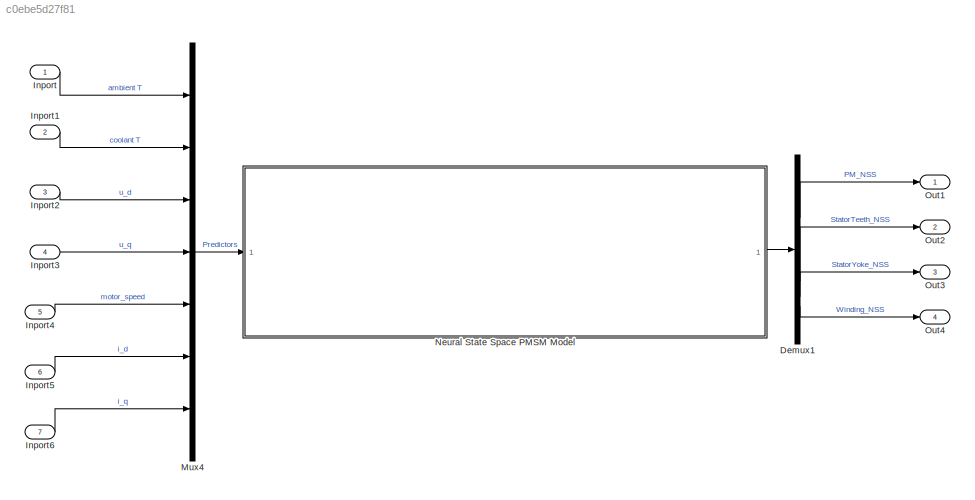
MODEL slx_c0ebe5d27f81
KIND model
CONFIG AbsTol = auto
CONFIG EnableMultiTasking = off
CONFIG FixedStep = 0.5
CONFIG MaxStep = auto
CONFIG MinStep = auto
CONFIG PreLoadFcn = % Load the trained NSS Model\nload Models/NSSTrainingOutput.mat\n\n% Extract the corresponding input normalizations\nmeanX_nss = NSStrainingOutput.Normalization.Mu{1,1:7};\nstdX_nss = NSStrainingOutput.Normalization.Sigma{1,1:7};\n\n% Extract output normalization\nmeanY_nss = NSStrainingOutput.Normalization.Mu{1,8:11};\nstdY_nss = NSStrainingOutput.Normalization.Sigma{1,8:11};
CONFIG RelTol = 1e-3
CONFIG SampleTimeConstraint = Unconstrained
CONFIG SolverName = FixedStepAuto
CONFIG StartTime = 0
CONFIG StopTime = inf
WORKSPACE source: mxarray member
WORKSPACE time = -1
BLOCK [Demux] Demux1
BLOCK [Inport] Inport
BLOCK [Inport] Inport1
  Port = 2
BLOCK [Inport] Inport2
  Port = 3
BLOCK [Inport] Inport3
  Port = 4
BLOCK [Inport] Inport4
  Port = 5
BLOCK [Inport] Inport5
  Port = 6
BLOCK [Inport] Inport6
  Port = 7
BLOCK [Mux] Mux4
  DisplayOption = bar
  Inputs = 7
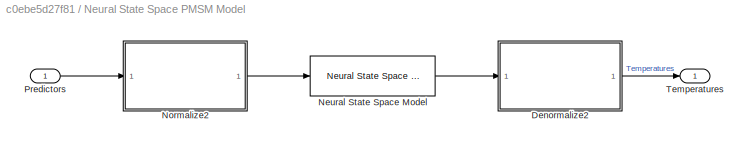
BLOCK [SubSystem] Neural State Space PMSM Model
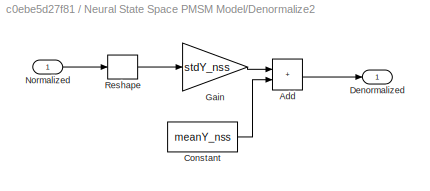
BLOCK [SubSystem] Neural State Space PMSM Model/Denormalize2
BLOCK [Sum] Neural State Space PMSM Model/Denormalize2/Add
  IconShape = rectangular
BLOCK [Constant] Neural State Space PMSM Model/Denormalize2/Constant
  Value = meanY_nss
BLOCK [Outport] Neural State Space PMSM Model/Denormalize2/Denormalized
BLOCK [Gain] Neural State Space PMSM Model/Denormalize2/Gain
  Gain = stdY_nss
  OutDataTypeStr = single
BLOCK [Inport] Neural State Space PMSM Model/Denormalize2/Normalized
BLOCK [Reshape] Neural State Space PMSM Model/Denormalize2/Reshape
BLOCK [Reference] Neural State Space PMSM Model/Neural State Space Model  REF=slident/Models/Neural State Space Model  (lib defined in mdl_f7d4911ca73a)
  SourceBlock = slident/Models/Neural State Space Model
  SourceType = Neural State Space Model
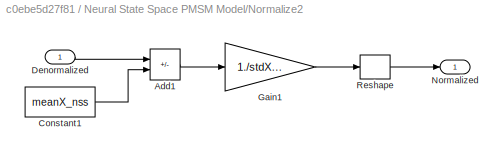
BLOCK [SubSystem] Neural State Space PMSM Model/Normalize2
BLOCK [Sum] Neural State Space PMSM Model/Normalize2/Add1
  IconShape = rectangular
  Inputs = +-
BLOCK [Constant] Neural State Space PMSM Model/Normalize2/Constant1
  Value = meanX_nss
BLOCK [Inport] Neural State Space PMSM Model/Normalize2/Denormalized
BLOCK [Gain] Neural State Space PMSM Model/Normalize2/Gain1
  Gain = 1./stdX_nss
BLOCK [Outport] Neural State Space PMSM Model/Normalize2/Normalized
BLOCK [Reshape] Neural State Space PMSM Model/Normalize2/Reshape
BLOCK [Inport] Neural State Space PMSM Model/Predictors
BLOCK [Outport] Neural State Space PMSM Model/Temperatures
BLOCK [Outport] Out1
BLOCK [Outport] Out2
  Port = 2
BLOCK [Outport] Out3
  Port = 3
BLOCK [Outport] Out4
  Port = 4
LINE Demux1:1 -> Out1:1
LINE Demux1:2 -> Out2:1
LINE Demux1:3 -> Out3:1
LINE Demux1:4 -> Out4:1
LINE Inport1:1 -> Mux4:2
LINE Inport2:1 -> Mux4:3
LINE Inport3:1 -> Mux4:4
LINE Inport4:1 -> Mux4:5
LINE Inport5:1 -> Mux4:6
LINE Inport6:1 -> Mux4:7
LINE Inport:1 -> Mux4:1
LINE Mux4:1 -> Neural State Space PMSM Model:1
LINE Neural State Space PMSM Model/Denormalize2/Add:1 -> Neural State Space PMSM Model/Denormalize2/Denormalized:1
LINE Neural State Space PMSM Model/Denormalize2/Constant:1 -> Neural State Space PMSM Model/Denormalize2/Add:2
LINE Neural State Space PMSM Model/Denormalize2/Gain:1 -> Neural State Space PMSM Model/Denormalize2/Add:1
LINE Neural State Space PMSM Model/Denormalize2/Normalized:1 -> Neural State Space PMSM Model/Denormalize2/Reshape:1
LINE Neural State Space PMSM Model/Denormalize2/Reshape:1 -> Neural State Space PMSM Model/Denormalize2/Gain:1
LINE Neural State Space PMSM Model/Denormalize2:1 -> Neural State Space PMSM Model/Temperatures:1
LINE Neural State Space PMSM Model/Neural State Space Model:1 -> Neural State Space PMSM Model/Denormalize2:1
LINE Neural State Space PMSM Model/Normalize2/Add1:1 -> Neural State Space PMSM Model/Normalize2/Gain1:1
LINE Neural State Space PMSM Model/Normalize2/Constant1:1 -> Neural State Space PMSM Model/Normalize2/Add1:2
LINE Neural State Space PMSM Model/Normalize2/Denormalized:1 -> Neural State Space PMSM Model/Normalize2/Add1:1
LINE Neural State Space PMSM Model/Normalize2/Gain1:1 -> Neural State Space PMSM Model/Normalize2/Reshape:1
LINE Neural State Space PMSM Model/Normalize2/Reshape:1 -> Neural State Space PMSM Model/Normalize2/Normalized:1
LINE Neural State Space PMSM Model/Normalize2:1 -> Neural State Space PMSM Model/Neural State Space Model:1
LINE Neural State Space PMSM Model/Predictors:1 -> Neural State Space PMSM Model/Normalize2:1
LINE Neural State Space PMSM Model:1 -> Demux1:1
